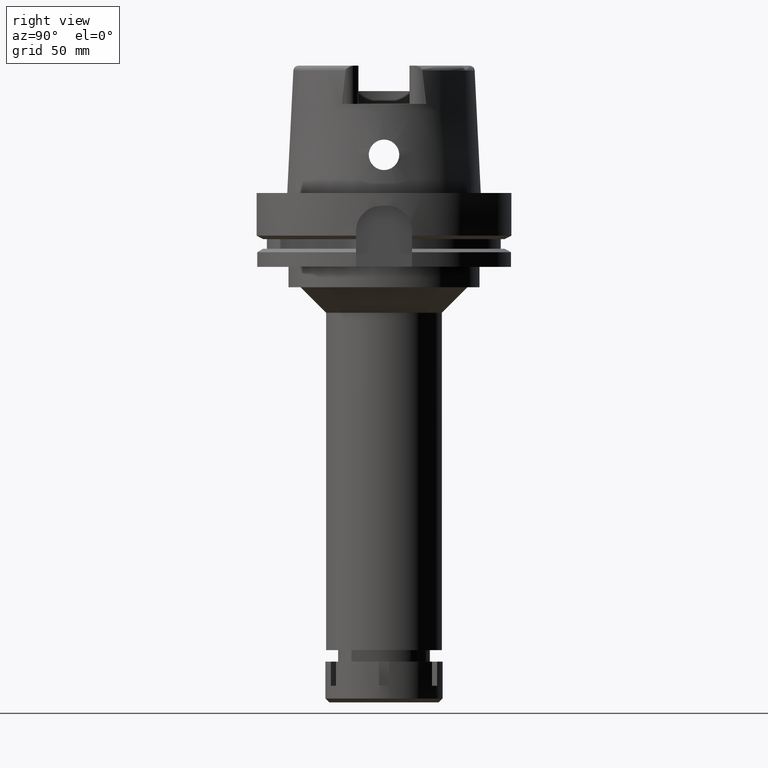
[diagram: clean part render]
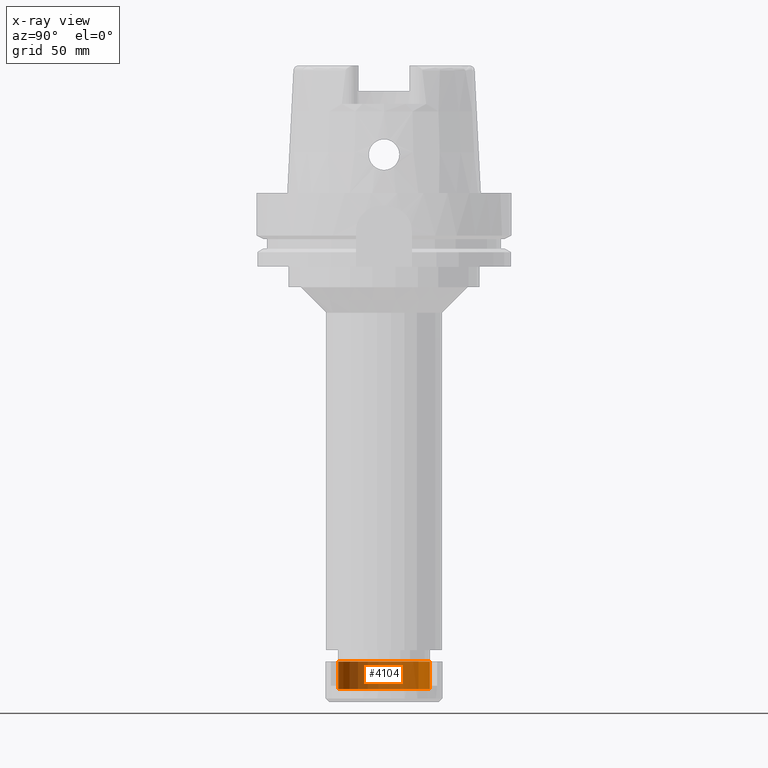
[diagram: x-ray — body ghosted, one internal face saturated and labeled with its STEP entity id]
A machine part, right view, then the same camera in x-ray: the body is ghosted and one INTERNAL B-rep face — a face not visible from any outside direction — is saturated and labeled: STEP entity #4104.
In plain terms, the highlighted cylindrical surface (partial cylindrical patch) has radius 18 mm, axis along (0, 0, -1).
Its self-contained STEP definition (entity closure, byte-faithful):
#320 = CARTESIAN_POINT ( 'NONE',  ( 0.0000000000000000000, 0.0000000000000000000, -10.80000000000000071 ) ) ;
#359 = DIRECTION ( 'NONE',  ( 0.0000000000000000000, 0.0000000000000000000, 1.000000000000000000 ) ) ;
#615 = VECTOR ( 'NONE', #359, 1000.000000000000000 ) ;
#716 = ORIENTED_EDGE ( 'NONE', *, *, #1722, .T. ) ;
#741 = CARTESIAN_POINT ( 'NONE',  ( 0.0000000000000000000, 0.0000000000000000000, 0.0000000000000000000 ) ) ;
#845 = DIRECTION ( 'NONE',  ( 0.0000000000000000000, 0.0000000000000000000, -1.000000000000000000 ) ) ;
#1212 = FACE_OUTER_BOUND ( 'NONE', #3337, .T. ) ;
#1322 = DIRECTION ( 'NONE',  ( 0.0000000000000000000, 0.0000000000000000000, 1.000000000000000000 ) ) ;
#1561 = AXIS2_PLACEMENT_3D ( 'NONE', #741, #845, #3114 ) ;
#1722 = EDGE_CURVE ( 'NONE', #4403, #4734, #2868, .T. ) ;
#1782 = LINE ( 'NONE', #3332, #4794 ) ;
#2142 = AXIS2_PLACEMENT_3D ( 'NONE', #320, #5589, #5095 ) ;
#2144 = CARTESIAN_POINT ( 'NONE',  ( 0.0000000000000000000, 0.0000000000000000000, 0.0000000000000000000 ) ) ;
#2374 = CARTESIAN_POINT ( 'NONE',  ( 0.0000000000000000000, -18.00000000000000000, 0.0000000000000000000 ) ) ;
#2616 = ORIENTED_EDGE ( 'NONE', *, *, #3320, .T. ) ;
#2618 = EDGE_CURVE ( 'NONE', #5682, #4734, #1782, .T. ) ;
#2699 = CYLINDRICAL_SURFACE ( 'NONE', #1561, 18.00000000000000000 ) ;
#2868 = CIRCLE ( 'NONE', #5530, 18.00000000000000000 ) ;
#2935 = CIRCLE ( 'NONE', #2142, 18.00000000000000000 ) ;
#3041 = ORIENTED_EDGE ( 'NONE', *, *, #5296, .T. ) ;
#3065 = CARTESIAN_POINT ( 'NONE',  ( 0.0000000000000000000, 18.00000000000000000, 0.0000000000000000000 ) ) ;
#3066 = CARTESIAN_POINT ( 'NONE',  ( 0.0000000000000000000, -18.00000000000000000, -10.80000000000000071 ) ) ;
#3114 = DIRECTION ( 'NONE',  ( 0.0000000000000000000, -1.000000000000000000, 0.0000000000000000000 ) ) ;
#3145 = LINE ( 'NONE', #5028, #615 ) ;
#3320 = EDGE_CURVE ( 'NONE', #4482, #4403, #3145, .T. ) ;
#3332 = CARTESIAN_POINT ( 'NONE',  ( 0.0000000000000000000, -18.00000000000000000, -10.80000000000000071 ) ) ;
#3337 = EDGE_LOOP ( 'NONE', ( #716, #3557, #3041, #2616 ) ) ;
#3557 = ORIENTED_EDGE ( 'NONE', *, *, #2618, .F. ) ;
#4104 = ADVANCED_FACE ( 'NONE', ( #1212 ), #2699, .F. ) ;
#4155 = CARTESIAN_POINT ( 'NONE',  ( 0.0000000000000000000, 18.00000000000000000, -10.80000000000000071 ) ) ;
#4403 = VERTEX_POINT ( 'NONE', #3065 ) ;
#4482 = VERTEX_POINT ( 'NONE', #4155 ) ;
#4705 = DIRECTION ( 'NONE',  ( 0.0000000000000000000, 1.000000000000000000, 0.0000000000000000000 ) ) ;
#4734 = VERTEX_POINT ( 'NONE', #2374 ) ;
#4794 = VECTOR ( 'NONE', #5117, 1000.000000000000000 ) ;
#5028 = CARTESIAN_POINT ( 'NONE',  ( 0.0000000000000000000, 18.00000000000000000, -10.80000000000000071 ) ) ;
#5095 = DIRECTION ( 'NONE',  ( 0.0000000000000000000, -1.000000000000000000, 0.0000000000000000000 ) ) ;
#5117 = DIRECTION ( 'NONE',  ( 0.0000000000000000000, 0.0000000000000000000, 1.000000000000000000 ) ) ;
#5296 = EDGE_CURVE ( 'NONE', #5682, #4482, #2935, .T. ) ;
#5530 = AXIS2_PLACEMENT_3D ( 'NONE', #2144, #1322, #4705 ) ;
#5589 = DIRECTION ( 'NONE',  ( 0.0000000000000000000, 0.0000000000000000000, -1.000000000000000000 ) ) ;
#5682 = VERTEX_POINT ( 'NONE', #3066 ) ;